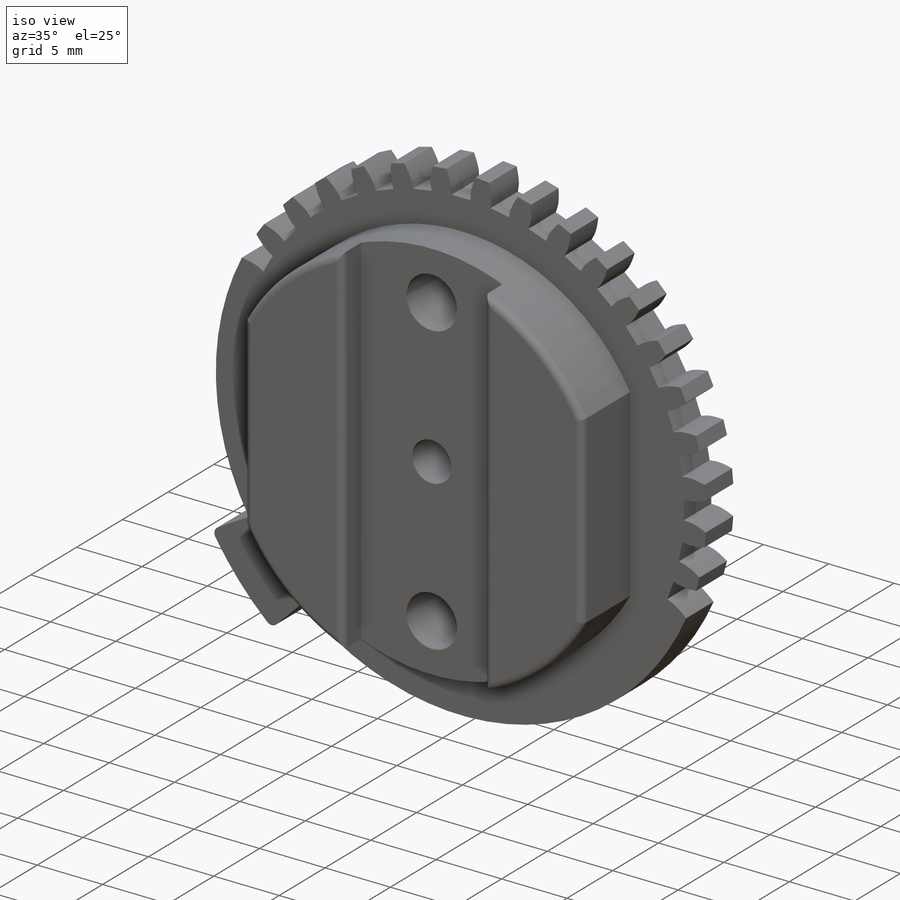
[diagram: iso view]
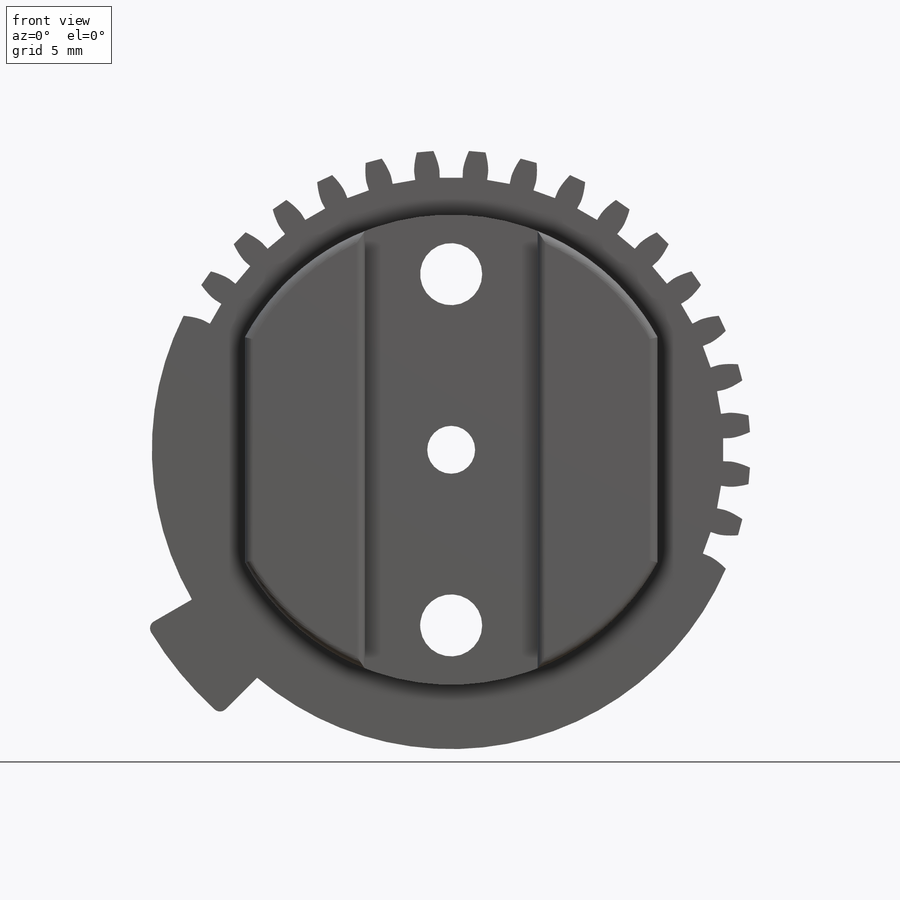
[diagram: front view]
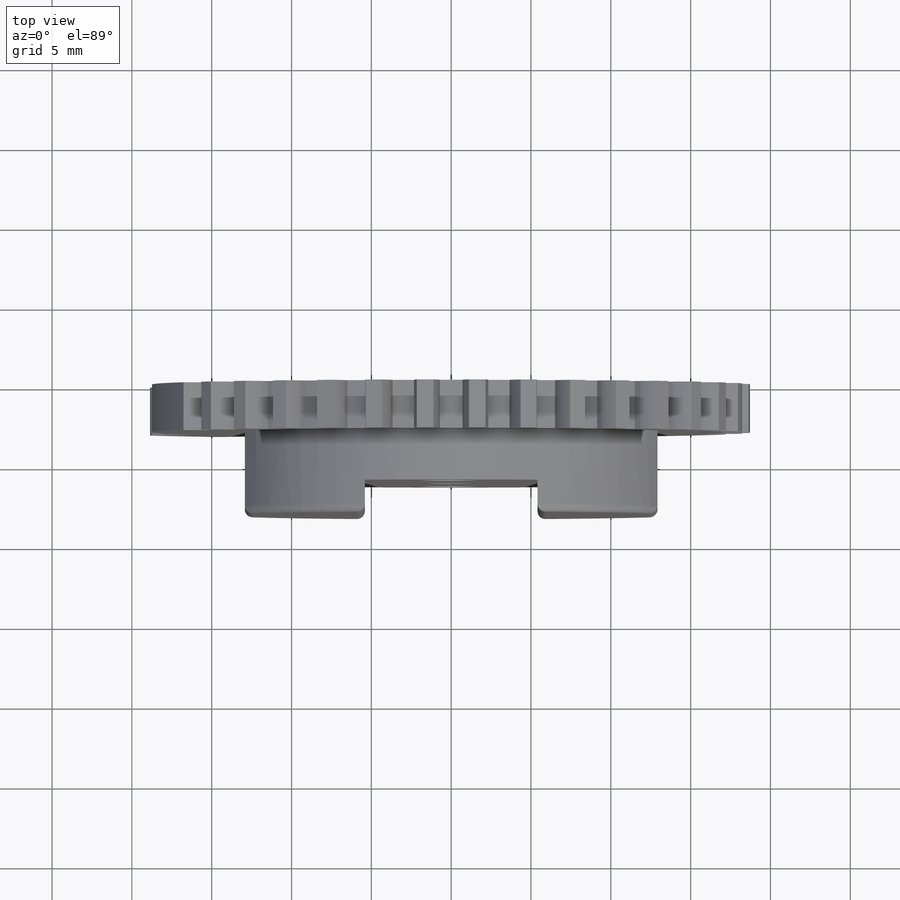
[diagram: top view]
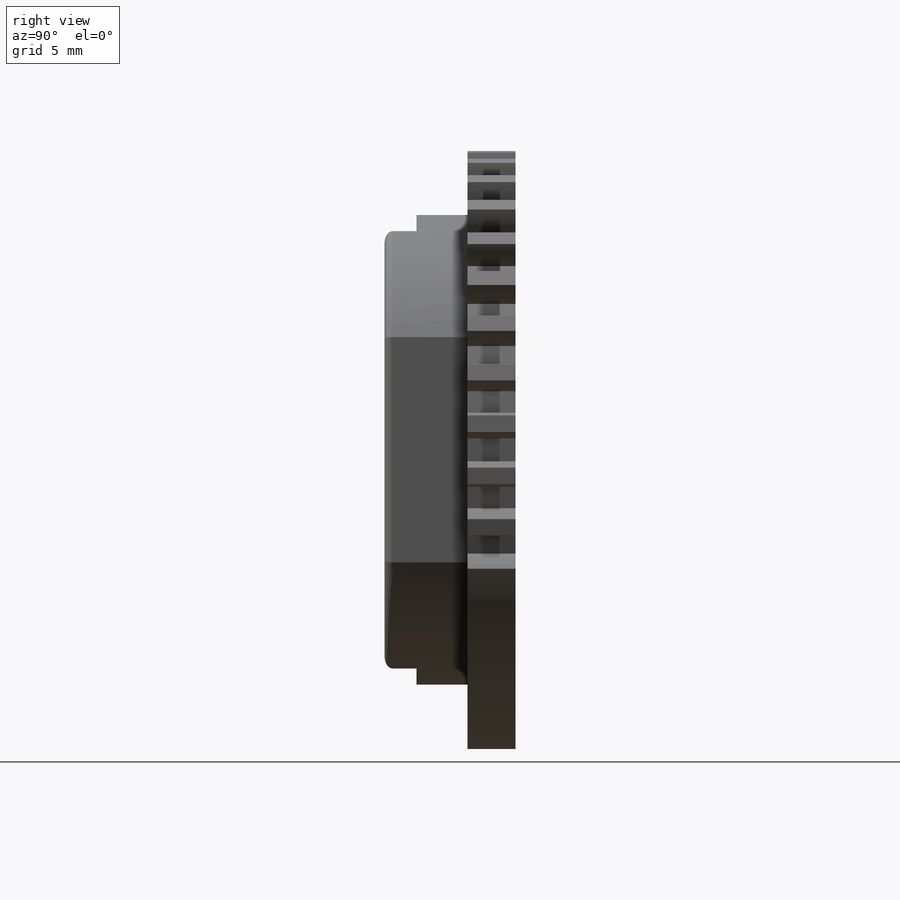
[diagram: right view]
SOLIDWORKS PART (.sldprt)
format: sldprt  version: not decoded by parser v0  size: 3,153,920 bytes
history: native  units: mm
features: sketch x9, cut_extrude x6, extrude x3, material x1, move_body x1, boolean_combine x1, fillet x1 + 1 further entry (+17 scaffold rows collapsed; 6 parser-record rows omitted)
feature tree (46):
  scaffold x17  (default folders/planes/origin — collapsed)
  material  "ABS"
  sketch  "Model"
  extrude  "Main Gear Body"  Depth=3mm
  sketch  "Sketch9"  dims[D1=0.05mm]
  cut_extrude  "Gear Cut"  [1 undecoded]
  sketch  "Sketch2"  dims[c1.D1=29.6mm c1.D2=20.2mm c1.D3=~11.431535mm c2.D2=15.0mm c2.D3=20.0mm]
  extrude  "Base Extension"  Depth=5.2mm
  sketch  "Sketch4"  dims[c1.D1=~3.336255mm c1.D3=3.0mm c1.D4=3.7mm c2.D1=~6.401779mm c3.D1=60.0deg c3.D2=6.5mm c4.D1=~5.496391mm c4.D2=~5.477247mm c5.D1=9.3mm]
  cut_extrude  "Tendon Port"  [1 undecoded]
  sketch  "Sketch7"  dims[c1.D2=22.0mm c1.D5=18.9mm c1.D4=~7.670548mm c1.D1=~21.012125mm c2.D1=45.0deg c2.D2=21.0mm c2.D3=3.0mm c2.D4=10.0mm c2.D5=~14.811313mm c3.D5=70.0deg c3.D6=~16.202915mm c4.D6=160.0deg c4.D4=~3.259915mm c5.D4=15.0deg c6.D4=~3.259915mm c7.D4=15.0deg]
  extrude  "Outer Anchor"  [1 undecoded]
  sketch  "Sketch11"  dims[D2=3.8862mm D1=22.0mm]
  cut_extrude  "Bolt Insert Clearance"  [1 undecoded]
  "c1_o"
  parser-record x6  (decoder bookkeeping rows leaked as tree rows — omitted from the tree; the rows remain in map.json)
  move_body  "Body-Move/Copy2"
  boolean_combine  "Combine1"
  sketch  "Sketch12"  dims[D1=0.0mm D2=0.0mm]
  cut_extrude  "Outer Clearance"  [1 undecoded]
  sketch  "Sketch13"  dims[D1=0.0mm D2=0.075mm]
  cut_extrude  "Print Clearance - Outer"  [1 undecoded]
  sketch  "Sketch14"  dims[D1=0.0mm D2=0.075mm]
  cut_extrude  "Print Clearance - Inner"  [1 undecoded]
  fillet  "Contouring"  Radius=0.5mm
decode coverage: 11 of 21 modeling features carry decoded parameters; 1 rows unclassified (native names shown)
note: ~ marks probable driven/reference dimensions
note: 7 parameter values undecoded
summary: no parameter record found for 7 features
note: suppression state not decoded; provenance and decode notes live in map.json
